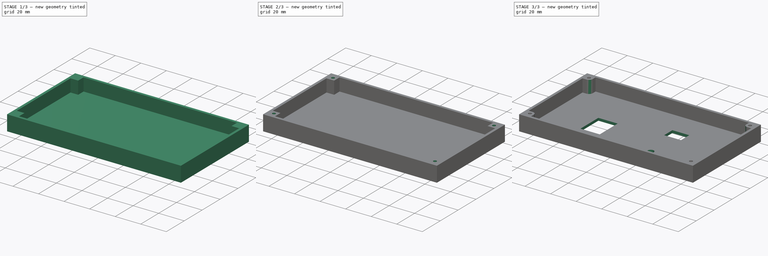
[diagram: build sequence overview — one tinted view per stage of 3, left to right]
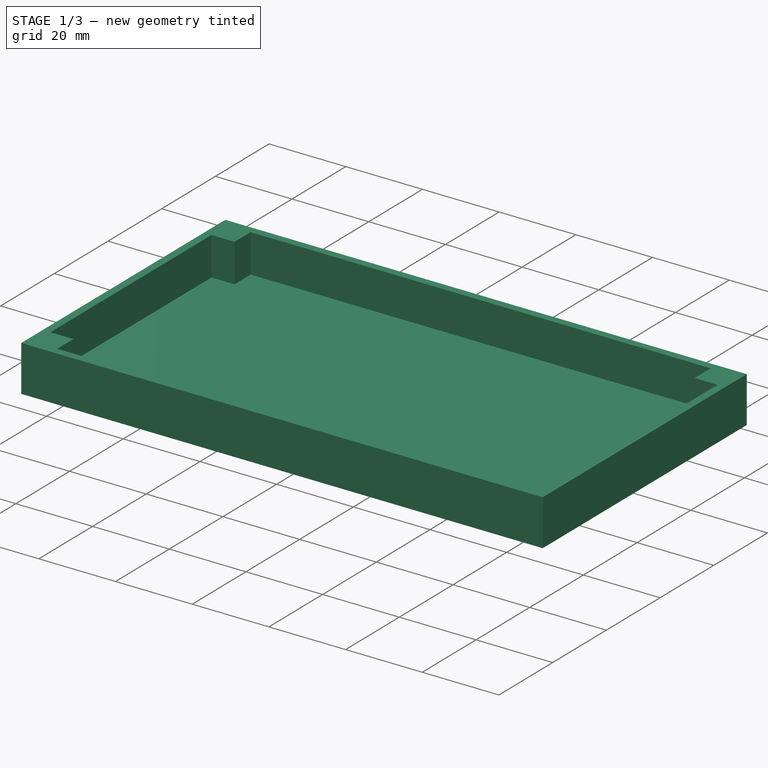
[diagram: stage 1 of 3 — iso view after this stage's code; geometry added in this stage tinted green]
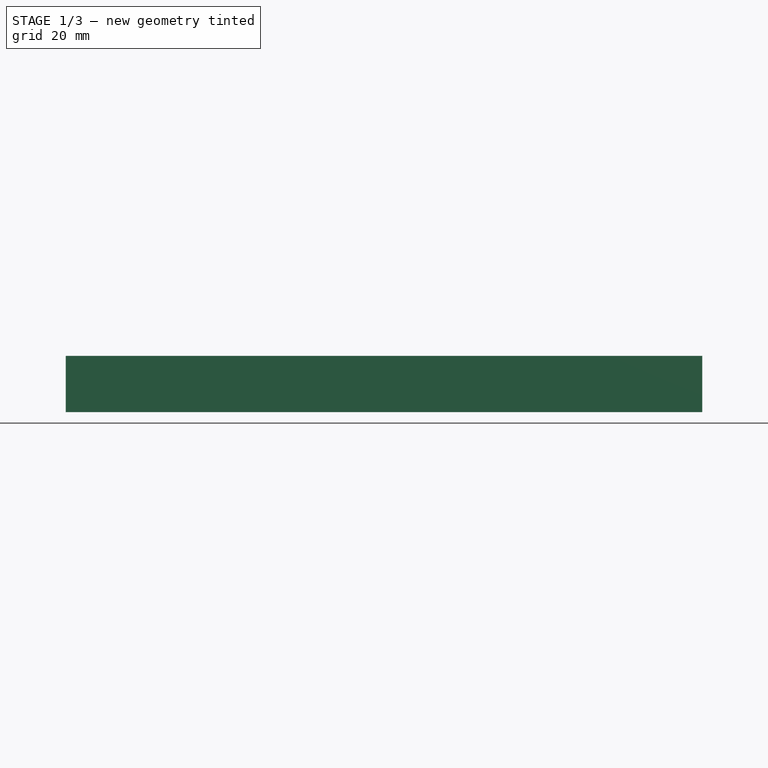
[diagram: stage 1 of 3 — front view after this stage's code; geometry added in this stage tinted green]
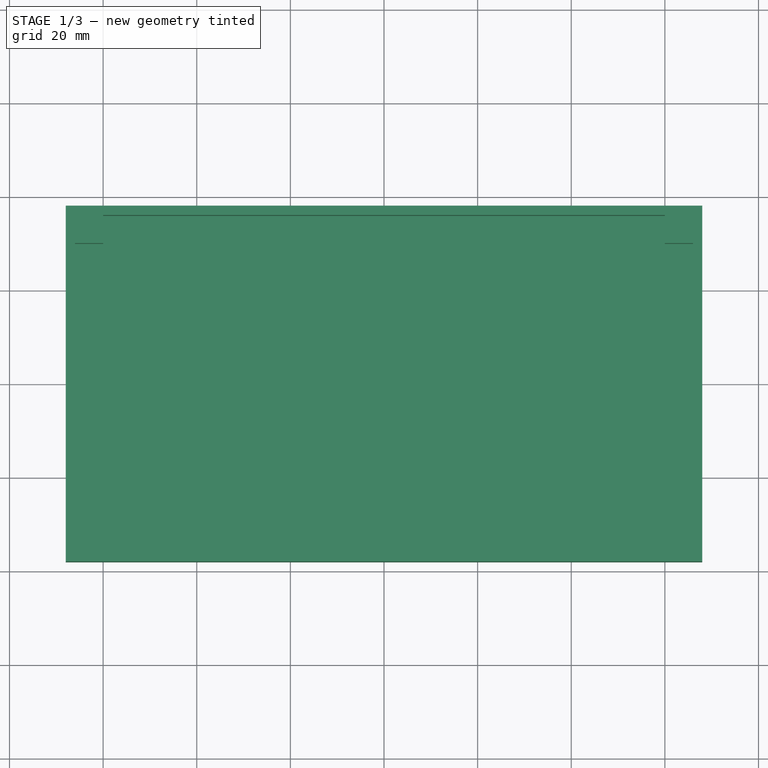
[diagram: stage 1 of 3 — top view after this stage's code; geometry added in this stage tinted green]
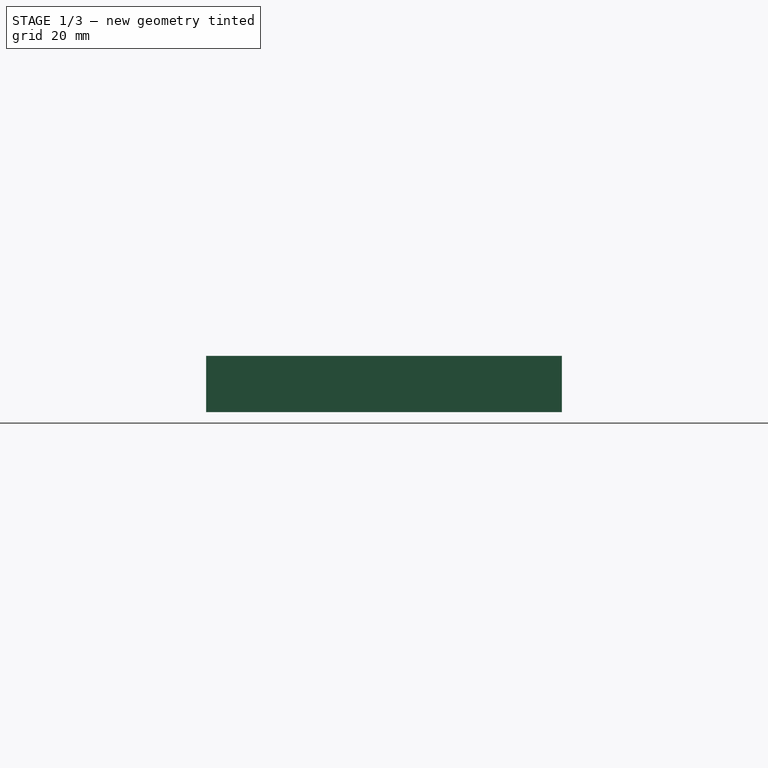
[diagram: stage 1 of 3 — right view after this stage's code; geometry added in this stage tinted green]
FCSTD DOCUMENT  (FreeCAD 0.19R24291 (Git))
Label: Box C.2
License: All rights reserved
LicenseURL: http://en.wikipedia.org/wiki/All_rights_reserved
objects: Sketcher::SketchObject×4, PartDesign::Pad×2, PartDesign::Pocket×2, PartDesign::Fillet×1, PartDesign::Body×1
note: 15 computed .brp shape members not serialized (recipe doc carries the construction recipe); baked Part::Feature solids carry a one-line shape summary decoded from their .brp

FEATURE [Sketcher::SketchObject] Sketch
  FullyConstrained = true
  MapMode = 5
  Support = -> [XY_Plane]
  sketch-geometry (4):
    g0: LineSegment StartX=-68 StartY=38 StartZ=0 EndX=68 EndY=38 EndZ=0
    g1: LineSegment StartX=68 StartY=38 StartZ=0 EndX=68 EndY=-38 EndZ=0
    g2: LineSegment StartX=68 StartY=-38 StartZ=0 EndX=-68 EndY=-38 EndZ=0
    g3: LineSegment StartX=-68 StartY=-38 StartZ=0 EndX=-68 EndY=38 EndZ=0
  constraints (10):
    c: Coincident(g0,g1)
    c: Coincident(g1,g2)
    c: Coincident(g2,g3)
    c: Coincident(g3,g0)
    c: Horizontal(g2)
    c: Vertical(g3)
    c: DistanceY(g2,g0) = 76
    c: DistanceX(g2,g1) = 136
    c: Symmetric(g0,g0,g-2)
    c: Symmetric(g0,g1,g-1)
FEATURE [PartDesign::Pad] Pad
  Direction = (1,1,1)
  Length = 2
  Length2 = 100
  Profile = -> Sketch
  Type = 0
FEATURE [Sketcher::SketchObject] Sketch001
  FullyConstrained = true
  MapMode = 5
  Placement = pos=(0,0,2) rot=(0,0,1;0rad)
  Support = -> [Pad]
  sketch-geometry (16):
    g0: LineSegment StartX=-68 StartY=38 StartZ=0 EndX=68 EndY=38 EndZ=0
    g1: LineSegment StartX=68 StartY=38 StartZ=0 EndX=68 EndY=-38 EndZ=0
    g2: LineSegment StartX=68 StartY=-38 StartZ=0 EndX=-68 EndY=-38 EndZ=0
    g3: LineSegment StartX=-60 StartY=36 StartZ=0 EndX=60 EndY=36 EndZ=0
    g4: LineSegment StartX=66 StartY=30 StartZ=0 EndX=66 EndY=-30 EndZ=0
    g5: LineSegment StartX=60 StartY=-36 StartZ=0 EndX=-60 EndY=-36 EndZ=0
    g6: LineSegment StartX=-66 StartY=-30 StartZ=0 EndX=-66 EndY=30 EndZ=0
    g7: LineSegment StartX=60 StartY=36 StartZ=0 EndX=60 EndY=30 EndZ=0
    g8: LineSegment StartX=66 StartY=30 StartZ=0 EndX=60 EndY=30 EndZ=0
    g9: LineSegment StartX=-66 StartY=30 StartZ=0 EndX=-60 EndY=30 EndZ=0
    g10: LineSegment StartX=-60 StartY=30 StartZ=0 EndX=-60 EndY=36 EndZ=0
    g11: LineSegment StartX=-66 StartY=-30 StartZ=0 EndX=-60 EndY=-30 EndZ=0
    g12: LineSegment StartX=-60 StartY=-36 StartZ=0 EndX=-60 EndY=-30 EndZ=0
    g13: LineSegment StartX=60 StartY=-36 StartZ=0 EndX=60 EndY=-30 EndZ=0
    g14: LineSegment StartX=66 StartY=-30 StartZ=0 EndX=60 EndY=-30 EndZ=0
    g15: LineSegment StartX=-68 StartY=-38 StartZ=0 EndX=-68 EndY=38 EndZ=0
  constraints (44):
    c: Coincident(g0,g1)
    c: Coincident(g1,g2)
    c: Horizontal(g0)
    c: DistanceY(g2,g0) = 76
    c: DistanceX(g0,g0) = 136
    c: Symmetric(g2,g1,g-2)
    c: Symmetric(g0,g1,g-1)
    c: Coincident(g8,g7)
    c: Horizontal(g8)
    c: Horizontal(g9)
    c: Coincident(g10,g9)
    c: Vertical(g10)
    c: DistanceX(g9,g9) = 6
    c: Equal(g9,g10)
    c: Horizontal(g11)
    c: Coincident(g12,g11)
    c: DistanceX(g11,g11) = 6
    c: Equal(g11,g12)
    c: Vertical(g13)
    c: Coincident(g14,g13)
    c: Horizontal(g14)
    c: DistanceX(g14,g14) = 6
    c: Equal(g14,g13)
    c: Vertical(g7)
    c: DistanceY(g7,g7) = 6
    c: Equal(g7,g8)
    c: Coincident(g3,g10)
    c: Coincident(g6,g9)
    c: Coincident(g3,g7)
    c: Coincident(g4,g8)
    c: Coincident(g4,g14)
    c: Coincident(g5,g13)
    c: Coincident(g5,g12)
    c: Coincident(g6,g11)
    c: DistanceX(g5,g5) = 120
    c: DistanceY(g6,g6) = 60
    c: DistanceX(g-1,g5) = 60
    c: DistanceX(g6,g4) = 132
    c: Symmetric(g3,g3,g-2)
    c: Symmetric(g6,g6,g-1)
    c: Coincident(g15,g2)
    c: Coincident(g15,g0)
    c: Vertical(g15)
    c: DistanceY(g5,g3) = 72
FEATURE [PartDesign::Pad] Pad001
  BaseFeature = -> Pad
  Direction = (1,1,1)
  Length = 10
  Length2 = 100
  Profile = -> Sketch001
  Type = 0
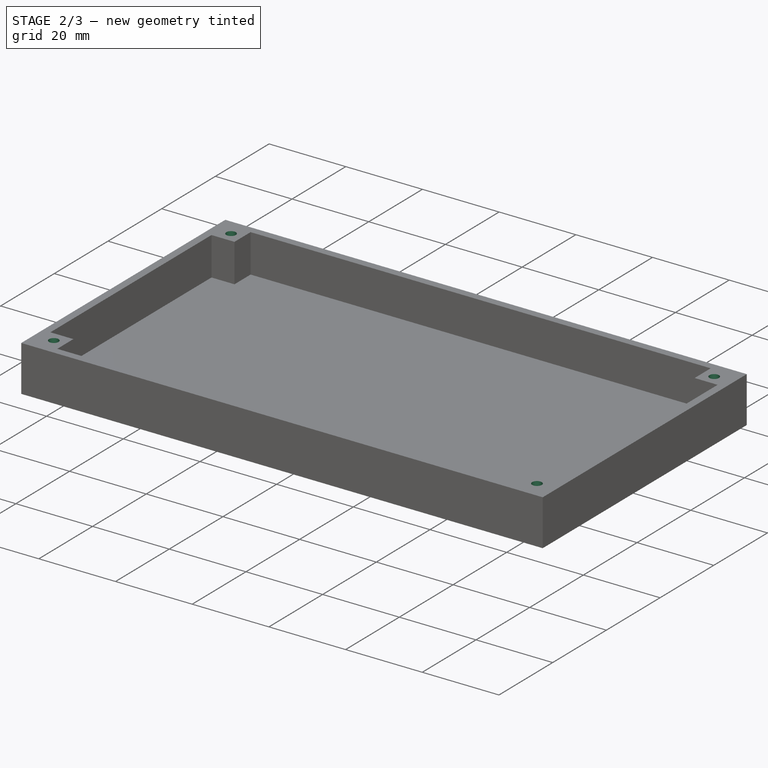
[diagram: stage 2 of 3 — iso view after this stage's code; geometry added in this stage tinted green]
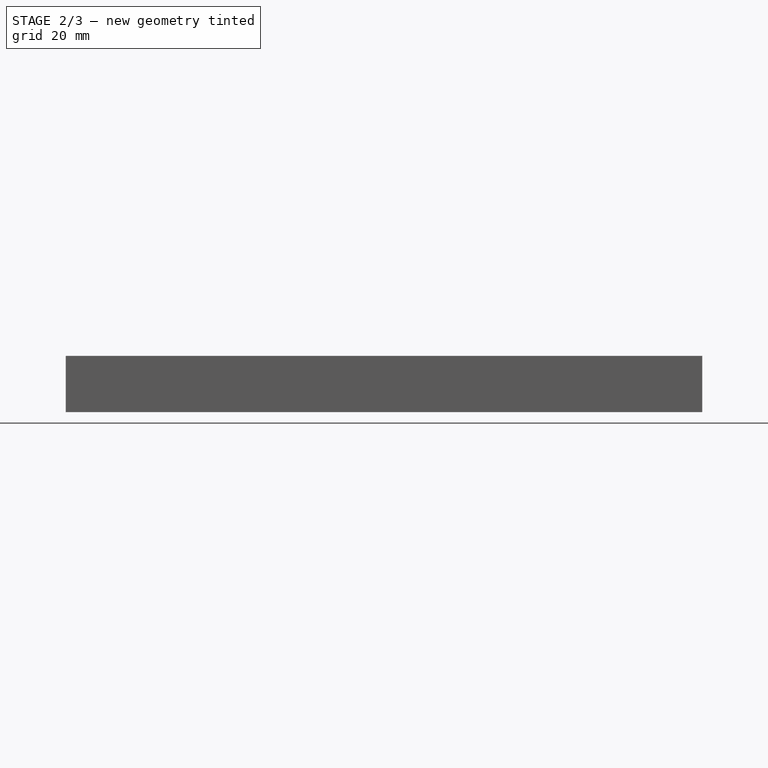
[diagram: stage 2 of 3 — front view after this stage's code; geometry added in this stage tinted green]
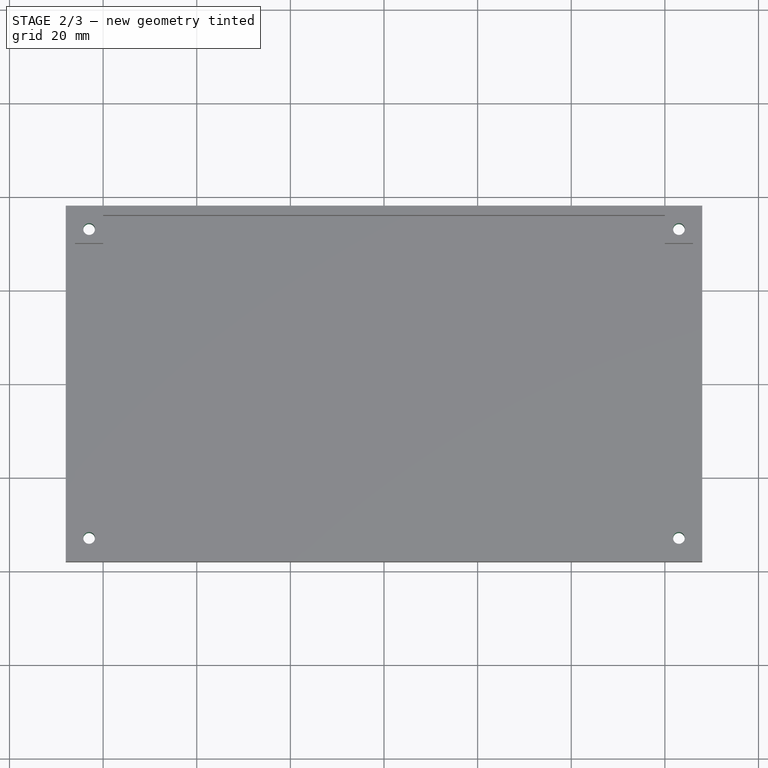
[diagram: stage 2 of 3 — top view after this stage's code; geometry added in this stage tinted green]
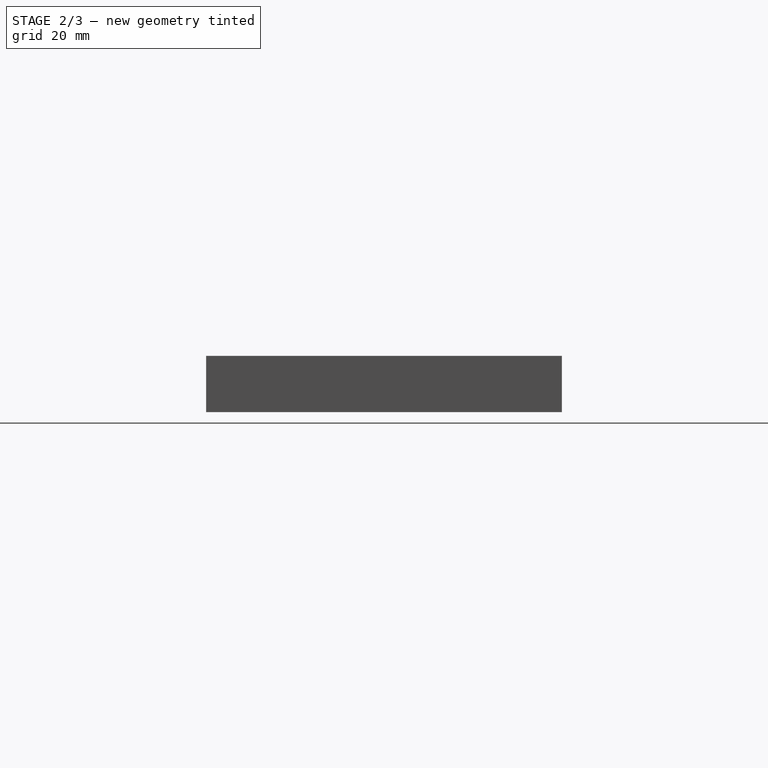
[diagram: stage 2 of 3 — right view after this stage's code; geometry added in this stage tinted green]
FEATURE [Sketcher::SketchObject] Sketch002
  FullyConstrained = true
  MapMode = 5
  Placement = pos=(0,0,12) rot=(0,0,1;0rad)
  Support = -> [Pad001]
  sketch-geometry (4):
    g0: Circle CenterX=-63 CenterY=33 CenterZ=0 NormalX=0 NormalY=0 NormalZ=1 AngleXU=0 Radius=1.25
    g1: Circle CenterX=-63 CenterY=-33 CenterZ=0 NormalX=0 NormalY=0 NormalZ=1 AngleXU=0 Radius=1.25
    g2: Circle CenterX=63 CenterY=33 CenterZ=0 NormalX=0 NormalY=0 NormalZ=1 AngleXU=0 Radius=1.25
    g3: Circle CenterX=63 CenterY=-33 CenterZ=0 NormalX=0 NormalY=0 NormalZ=1 AngleXU=0 Radius=1.25
  constraints (9):
    c: DistanceY(g-1,g0) = 33
    c: DistanceX(g0,g-1) = 63
    c: Radius(g0) = 1.25
    c: Equal(g0,g1) = 1.25
    c: Equal(g0,g2) = 1.25
    c: Equal(g0,g3) = 1.25
    c: Symmetric(g3,g2,g-1)
    c: Symmetric(g3,g1,g-2)
    c: Symmetric(g1,g0,g-1)
FEATURE [PartDesign::Pocket] Pocket
  BaseFeature = -> Pad001
  Length = 13
  Length2 = 100
  Profile = -> Sketch002
  Type = 0
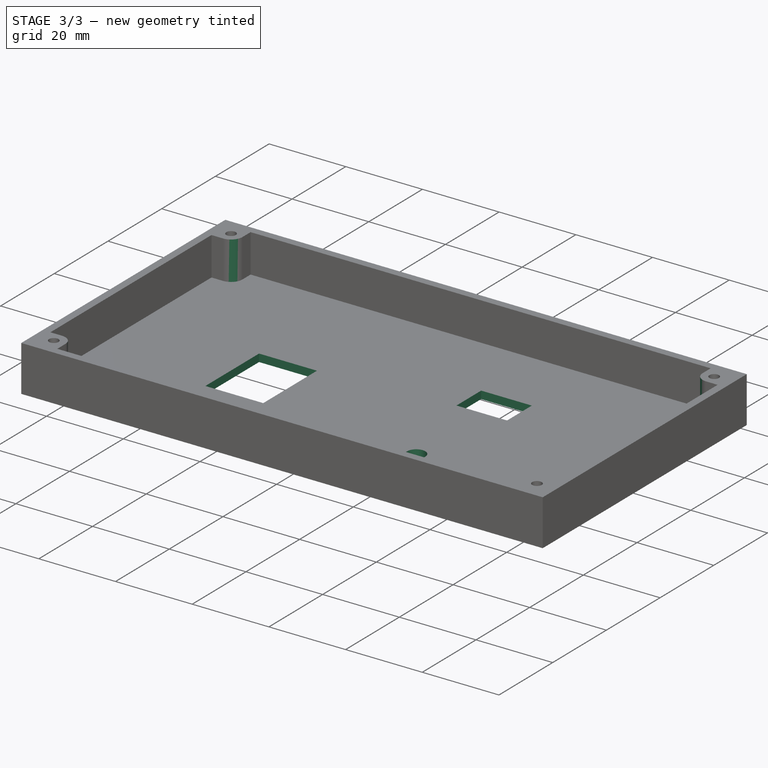
[diagram: stage 3 of 3 — iso view after this stage's code; geometry added in this stage tinted green]
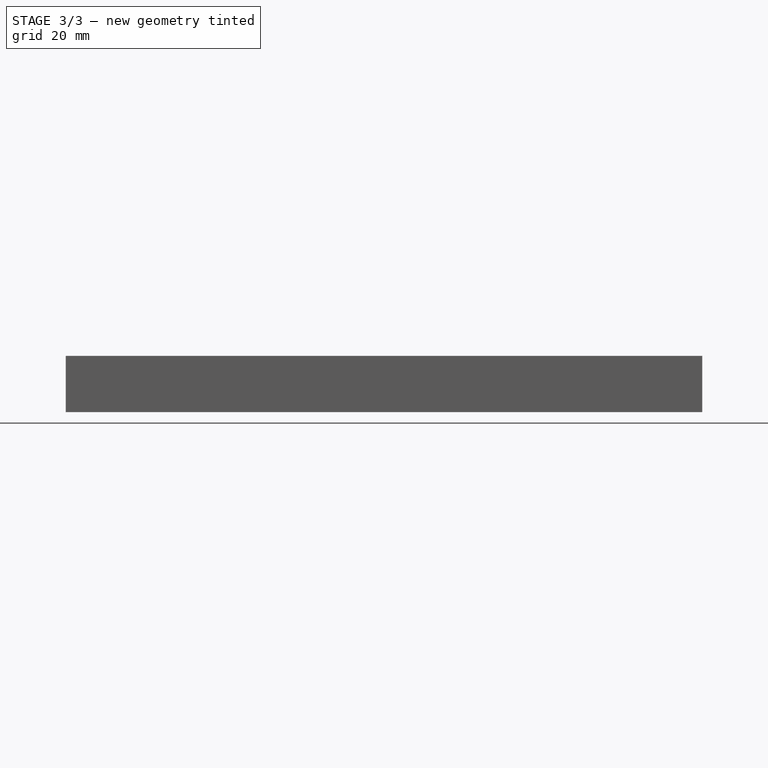
[diagram: stage 3 of 3 — front view after this stage's code; geometry added in this stage tinted green]
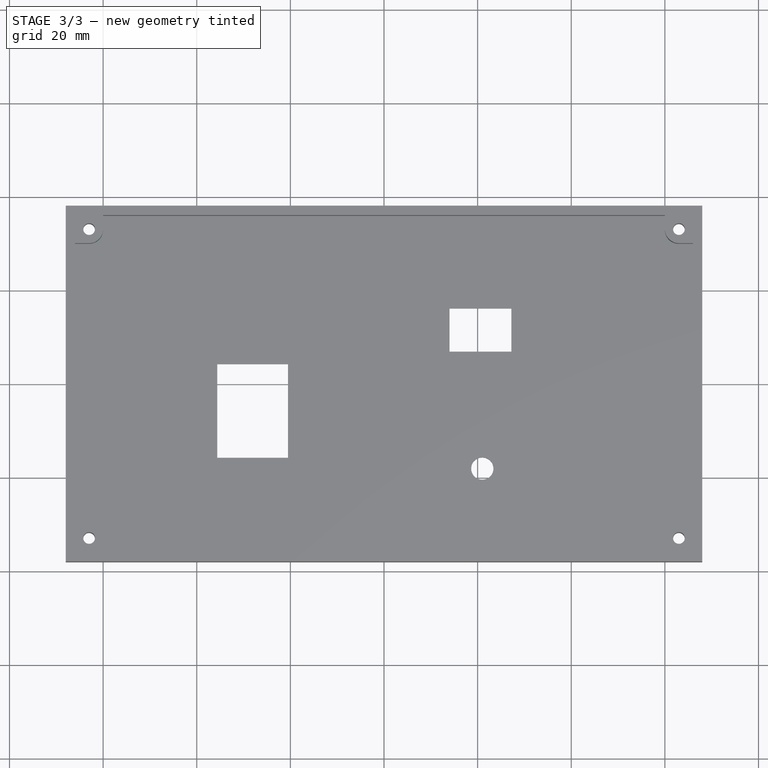
[diagram: stage 3 of 3 — top view after this stage's code; geometry added in this stage tinted green]
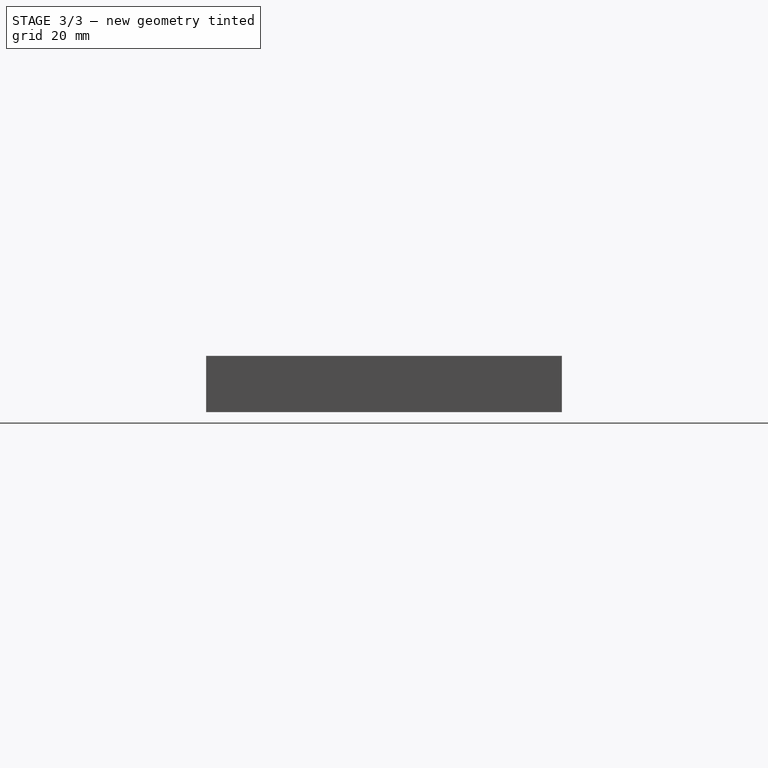
[diagram: stage 3 of 3 — right view after this stage's code; geometry added in this stage tinted green]
FEATURE [Sketcher::SketchObject] Sketch003
  FullyConstrained = true
  MapMode = 5
  Placement = pos=(0,0,0) rot=(1,0,0;3.14159rad)
  Support = -> [Pocket]
  sketch-geometry (9):
    g0: LineSegment StartX=-35.61 StartY=15.68 StartZ=0 EndX=-20.51 EndY=15.68 EndZ=0
    g1: LineSegment StartX=-20.51 StartY=15.68 StartZ=0 EndX=-20.51 EndY=-4.32 EndZ=0
    g2: LineSegment StartX=-20.51 StartY=-4.32 StartZ=0 EndX=-35.61 EndY=-4.32 EndZ=0
    g3: LineSegment StartX=-35.61 StartY=-4.32 StartZ=0 EndX=-35.61 EndY=15.68 EndZ=0
    g4: Circle CenterX=21 CenterY=18 CenterZ=0 NormalX=0 NormalY=0 NormalZ=1 AngleXU=0 Radius=2.375
    g5: LineSegment StartX=14 StartY=-7 StartZ=0 EndX=27.2 EndY=-7 EndZ=0
    g6: LineSegment StartX=27.2 StartY=-7 StartZ=0 EndX=27.2 EndY=-16.2 EndZ=0
    g7: LineSegment StartX=27.2 StartY=-16.2 StartZ=0 EndX=14 EndY=-16.2 EndZ=0
    g8: LineSegment StartX=14 StartY=-16.2 StartZ=0 EndX=14 EndY=-7 EndZ=0
  constraints (27):
    c: Coincident(g0,g1)
    c: Coincident(g1,g2)
    c: Coincident(g2,g3)
    c: Coincident(g3,g0)
    c: Horizontal(g0)
    c: Horizontal(g2)
    c: Vertical(g1)
    c: Vertical(g3)
    c: DistanceY(g3,g3) = 20
    c: DistanceX(g0,g0) = 15.1
    c: DistanceX(g1,g-1) = 20.51
    c: DistanceY(g2,g-1) = 4.32
    c: Diameter(g4) = 4.75
    c: DistanceX(g-1,g4) = 21
    c: DistanceY(g-1,g4) = 18
    c: Coincident(g5,g6)
    c: Coincident(g6,g7)
    c: Coincident(g7,g8)
    c: Coincident(g8,g5)
    c: Horizontal(g5)
    c: Horizontal(g7)
    c: Vertical(g6)
    c: Vertical(g8)
    c: DistanceX(g7,g7) = 13.2
    c: DistanceY(g6,g6) = 9.2
    c: DistanceY(g5,g-1) = 7
    c: DistanceX(g-1,g7) = 14
FEATURE [PartDesign::Pocket] Pocket001
  BaseFeature = -> Pocket
  Length = 3
  Length2 = 100
  Profile = -> Sketch003
  Type = 0
FEATURE [PartDesign::Fillet] Fillet
  Base = -> Pocket001 [Edge94,Edge88,Edge91,Edge85]
  BaseFeature = -> Pocket001
  Radius = 3
  SupportTransform = false
FEATURE [PartDesign::Body] Body
  Group = -> [Sketch,Pad,Sketch001,Pad001,Sketch002,Pocket,Sketch003,Pocket001,Fillet]
  Origin = -> Origin
  Tip = -> Fillet
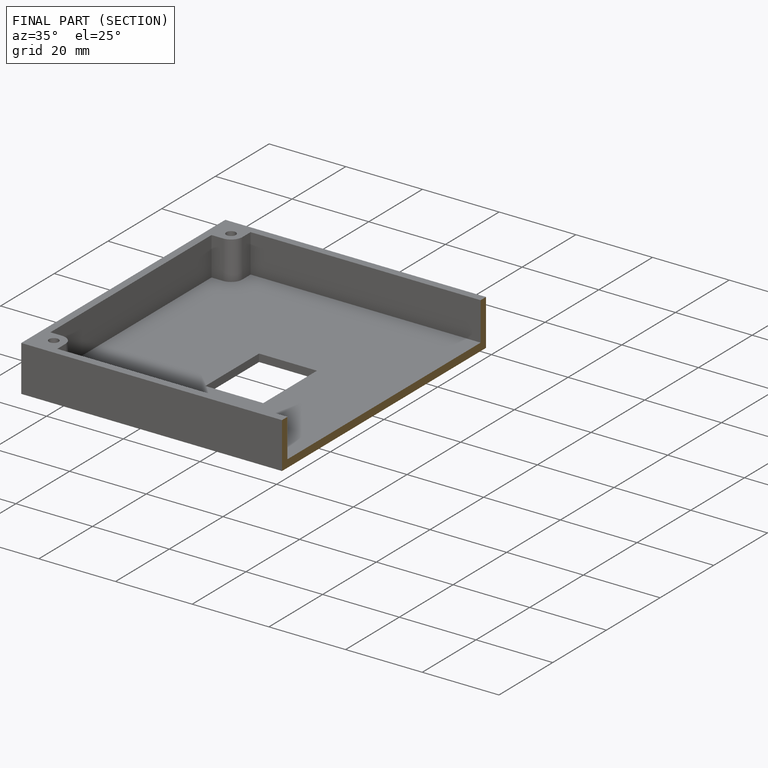
[diagram: finished part — half-section view (interior)]
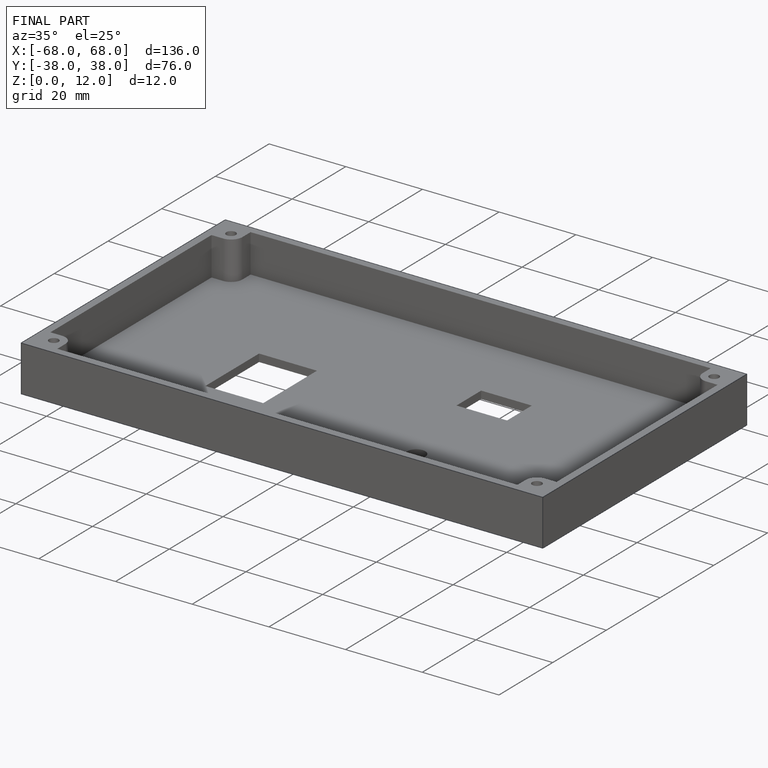
[diagram: finished part — iso view with bounding-box wireframe]
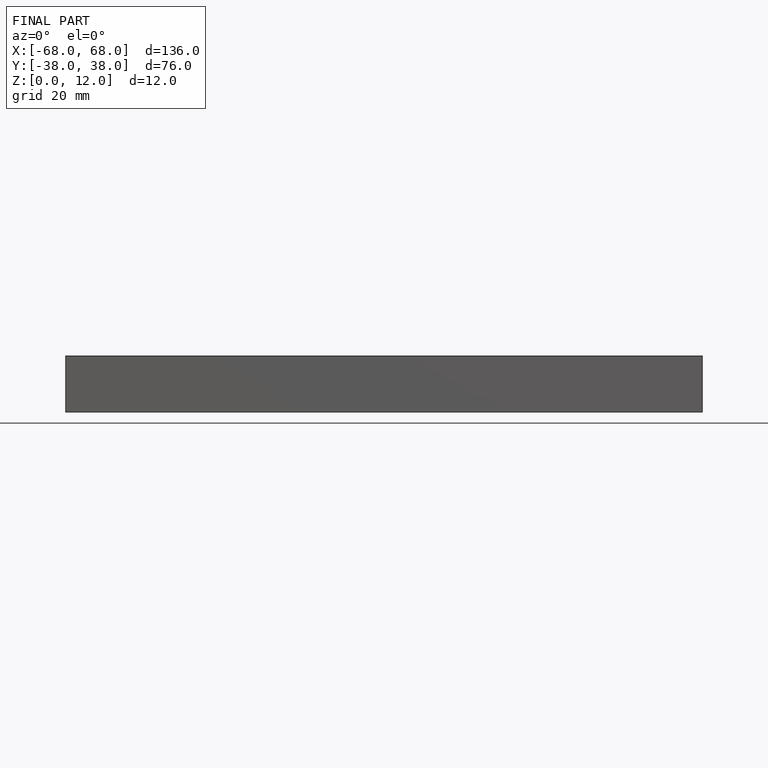
[diagram: finished part — front view with bounding-box wireframe]
